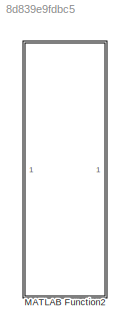
MODEL slx_8d839e9fdbc5
KIND library
CONFIG AbsTol = auto
CONFIG EnableMultiTasking = off
CONFIG FixedStep = auto
CONFIG MaxStep = auto
CONFIG MinStep = auto
CONFIG RelTol = 1e-3
CONFIG SampleTimeConstraint = Unconstrained
CONFIG SolverName = VariableStepAuto
CONFIG StartTime = 0.0
CONFIG StopTime = 10.0
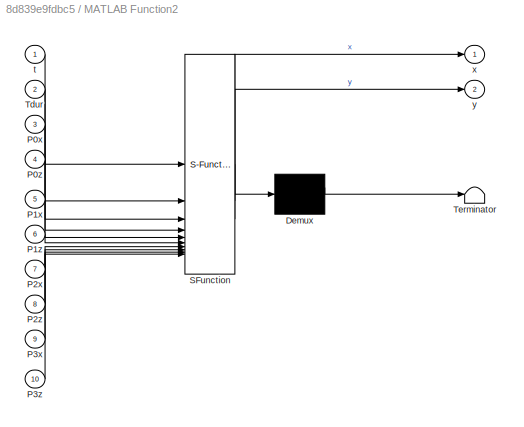
BLOCK [SubSystem] MATLAB Function2
  ErrorFcn = Stateflow.Translate.translate
  PermitHierarchicalResolution = ExplicitOnly
  SFBlockType = MATLAB Function
  TreatAsAtomicUnit = on
BLOCK [Demux] MATLAB Function2/ Demux 
  Outputs = 1
BLOCK [S-Function] MATLAB Function2/ SFunction 
  EnableBusSupport = on
  FunctionName = sf_sfun
  PortCounts = [10 3]
  SFcnIsStateOwnerBlock = off
  SFunctionDeploymentMode = off
  Tag = Stateflow S-Function 94
BLOCK [Terminator] MATLAB Function2/ Terminator 
BLOCK [Inport] MATLAB Function2/P0x
  Port = 3
BLOCK [Inport] MATLAB Function2/P0z
  Port = 4
BLOCK [Inport] MATLAB Function2/P1x
  Port = 5
BLOCK [Inport] MATLAB Function2/P1z
  Port = 6
BLOCK [Inport] MATLAB Function2/P2x
  Port = 7
BLOCK [Inport] MATLAB Function2/P2z
  Port = 8
BLOCK [Inport] MATLAB Function2/P3x
  Port = 9
BLOCK [Inport] MATLAB Function2/P3z
  Port = 10
BLOCK [Inport] MATLAB Function2/Tdur
  Port = 2
BLOCK [Inport] MATLAB Function2/t
BLOCK [Outport] MATLAB Function2/x
BLOCK [Outport] MATLAB Function2/y
  Port = 2
CHART MATLAB Function2 states=1 transitions=1
  STATE_LABEL 'eML_blk_kernel()'
  STATE_LABEL 'SCRIPT:\nfunction [x, y] = bez_plane_TrajV2(t,Tdur,P0x,P0z,P1x,P1z,P2x,P2z,P3x,P3z)\nt_swing = Tdur/4;\nt_support = Tdur*3/4;\n\nP0 = [P0x, P0z];\nP1 = [P1x, P1z];\nP2 = [P2x, P2z];\nP3 = [P3x, P3z];\nP_ini = (P0 + P3)/2;\n\nif Tdur == 0\n    x = -P_ini(1);\n    y = P_ini(2);\n\nelseif t<=t_support/2\n    x = -1*(P_ini(1)+(P0(1)-P3(1))/t_support*(t));\n    y = P_ini(2);\n\nelseif t<=t_support/2+t_swing\n    t_ef = (t...<+328ch>'
CHART  states=0 transitions=0
